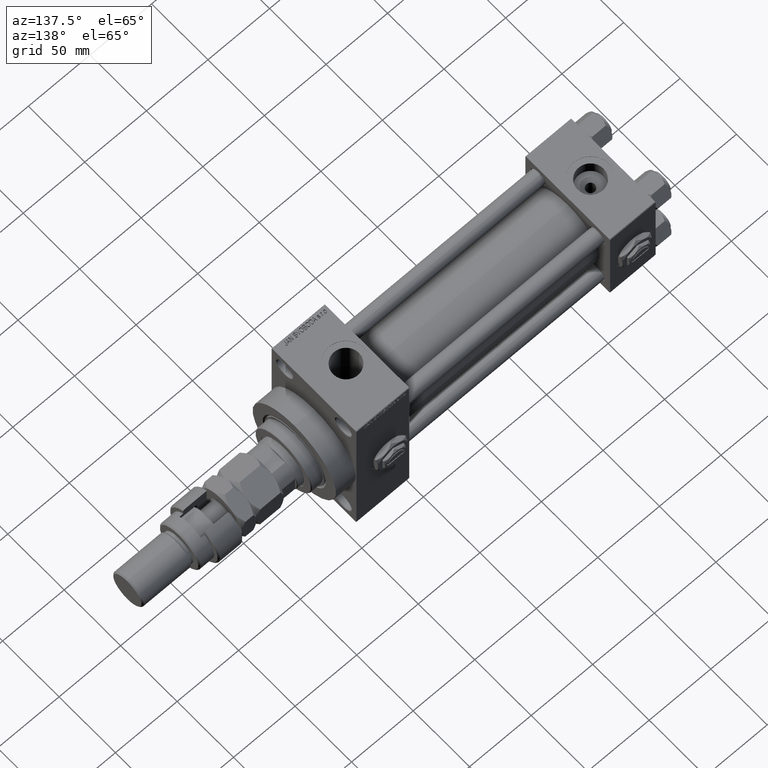
[diagram: clean part render]
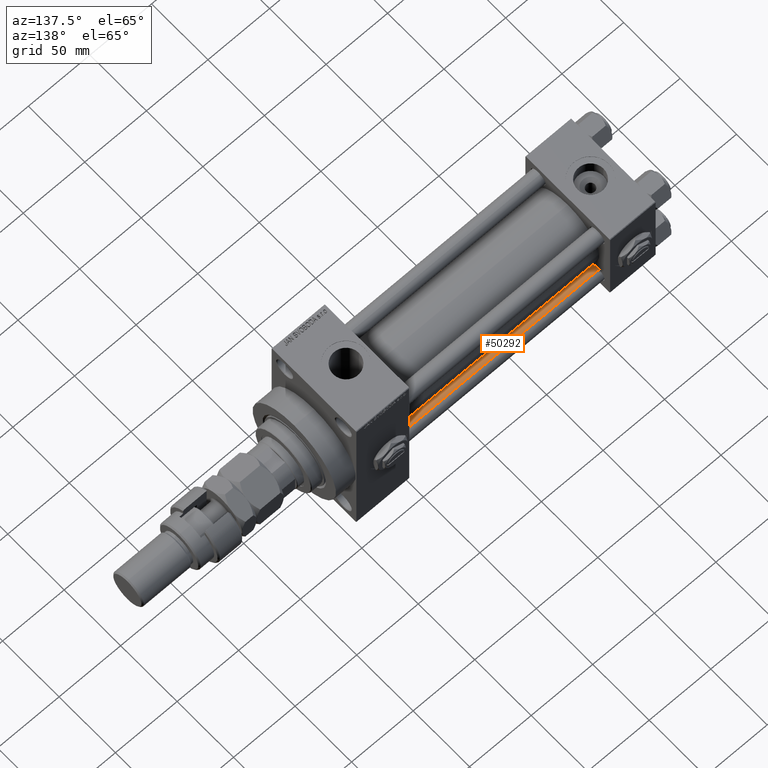
[diagram: same view with one face highlighted and labeled with its STEP entity id]
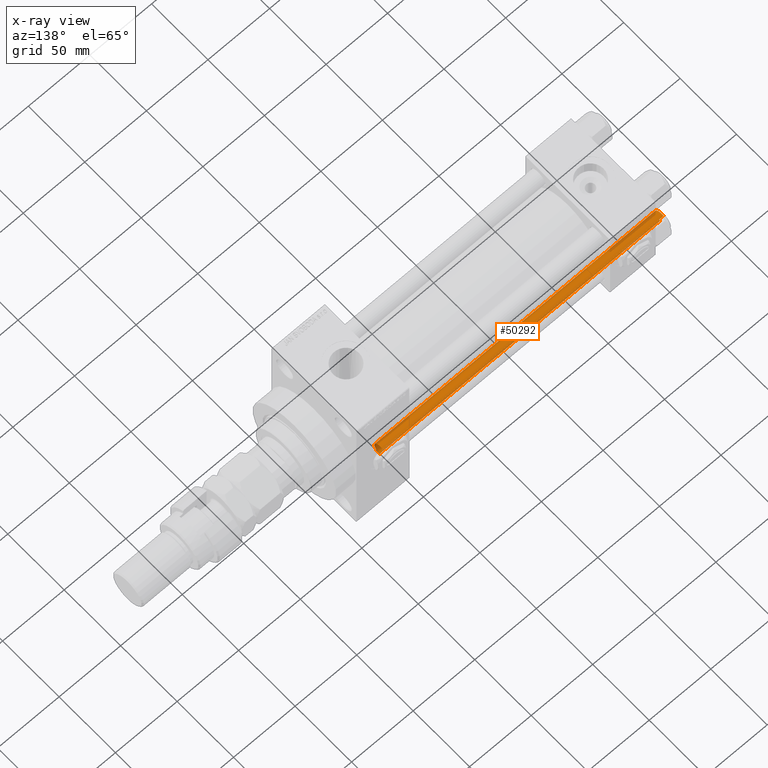
[diagram: x-ray of the same camera — body ghosted, the highlighted face saturated]
A machine part, auxiliary view. The second image highlights one B-rep face of the part: STEP entity #50292.
The next image is the same camera in x-ray: the body ghosted, the highlighted face saturated — about 10% of this face is hidden behind the body in this view.
In plain terms, the highlighted cylindrical surface (edge-blend (fillet) strip) has radius 6 mm, axis along (1, -0, 0).
Its self-contained STEP definition (entity closure, byte-faithful):
#2778 = VECTOR ( 'NONE', #6549, 1000.000000000000000 ) ;
#3672 = DIRECTION ( 'NONE',  ( -0.000000000000000000, -0.000000000000000000, -1.000000000000000000 ) ) ;
#6114 = DIRECTION ( 'NONE',  ( 0.000000000000000000, 0.000000000000000000, -1.000000000000000000 ) ) ;
#6549 = DIRECTION ( 'NONE',  ( -0.000000000000000000, -0.000000000000000000, -1.000000000000000000 ) ) ;
#9263 = CIRCLE ( 'NONE', #35575, 6.000000000000000888 ) ;
#9486 = VERTEX_POINT ( 'NONE', #47591 ) ;
#10022 = EDGE_CURVE ( 'NONE', #27786, #9486, #14513, .T. ) ;
#12796 = CIRCLE ( 'NONE', #42446, 6.000000000000000888 ) ;
#14513 = LINE ( 'NONE', #18234, #2778 ) ;
#18122 = CARTESIAN_POINT ( 'NONE',  ( -6.000000000000000888, 0.000000000000000000, 228.5000000000001137 ) ) ;
#18218 = ORIENTED_EDGE ( 'NONE', *, *, #28542, .T. ) ;
#18234 = CARTESIAN_POINT ( 'NONE',  ( 6.000000000000000888, 7.347880794884119736E-16, 229.0000000000000000 ) ) ;
#19429 = VECTOR ( 'NONE', #52183, 1000.000000000000000 ) ;
#21197 = AXIS2_PLACEMENT_3D ( 'NONE', #31279, #3672, #36055 ) ;
#24120 = ORIENTED_EDGE ( 'NONE', *, *, #34527, .T. ) ;
#25179 = CARTESIAN_POINT ( 'NONE',  ( 0.000000000000000000, 0.000000000000000000, 0.5000000000001392220 ) ) ;
#26015 = DIRECTION ( 'NONE',  ( 1.000000000000000000, 0.000000000000000000, 0.000000000000000000 ) ) ;
#26205 = DIRECTION ( 'NONE',  ( -0.000000000000000000, -0.000000000000000000, 1.000000000000000000 ) ) ;
#26707 = ORIENTED_EDGE ( 'NONE', *, *, #10022, .F. ) ;
#27496 = ORIENTED_EDGE ( 'NONE', *, *, #31555, .T. ) ;
#27786 = VERTEX_POINT ( 'NONE', #32795 ) ;
#28058 = LINE ( 'NONE', #29116, #19429 ) ;
#28542 = EDGE_CURVE ( 'NONE', #45609, #9486, #9263, .T. ) ;
#28950 = VERTEX_POINT ( 'NONE', #18122 ) ;
#29116 = CARTESIAN_POINT ( 'NONE',  ( -6.000000000000000888, 0.000000000000000000, 229.0000000000000000 ) ) ;
#30267 = CARTESIAN_POINT ( 'NONE',  ( 0.000000000000000000, 0.000000000000000000, 228.5000000000001137 ) ) ;
#31279 = CARTESIAN_POINT ( 'NONE',  ( 0.000000000000000000, 0.000000000000000000, 229.0000000000000000 ) ) ;
#31555 = EDGE_CURVE ( 'NONE', #28950, #45609, #28058, .T. ) ;
#32795 = CARTESIAN_POINT ( 'NONE',  ( 6.000000000000000888, 7.347880794884119736E-16, 228.5000000000001137 ) ) ;
#33847 = CARTESIAN_POINT ( 'NONE',  ( -6.000000000000000888, 0.000000000000000000, 0.5000000000001392220 ) ) ;
#34527 = EDGE_CURVE ( 'NONE', #27786, #28950, #12796, .T. ) ;
#35079 = EDGE_LOOP ( 'NONE', ( #26707, #24120, #27496, #18218 ) ) ;
#35575 = AXIS2_PLACEMENT_3D ( 'NONE', #25179, #26205, #37912 ) ;
#36055 = DIRECTION ( 'NONE',  ( -1.000000000000000000, 0.000000000000000000, 0.000000000000000000 ) ) ;
#37912 = DIRECTION ( 'NONE',  ( 1.000000000000000000, 0.000000000000000000, 0.000000000000000000 ) ) ;
#42446 = AXIS2_PLACEMENT_3D ( 'NONE', #30267, #6114, #26015 ) ;
#44002 = FACE_OUTER_BOUND ( 'NONE', #35079, .T. ) ;
#44273 = CYLINDRICAL_SURFACE ( 'NONE', #21197, 6.000000000000000888 ) ;
#45609 = VERTEX_POINT ( 'NONE', #33847 ) ;
#47591 = CARTESIAN_POINT ( 'NONE',  ( 6.000000000000000888, 7.347880794884119736E-16, 0.5000000000001392220 ) ) ;
#50292 = ADVANCED_FACE ( 'NONE', ( #44002 ), #44273, .T. ) ;
#52183 = DIRECTION ( 'NONE',  ( -0.000000000000000000, -0.000000000000000000, -1.000000000000000000 ) ) ;